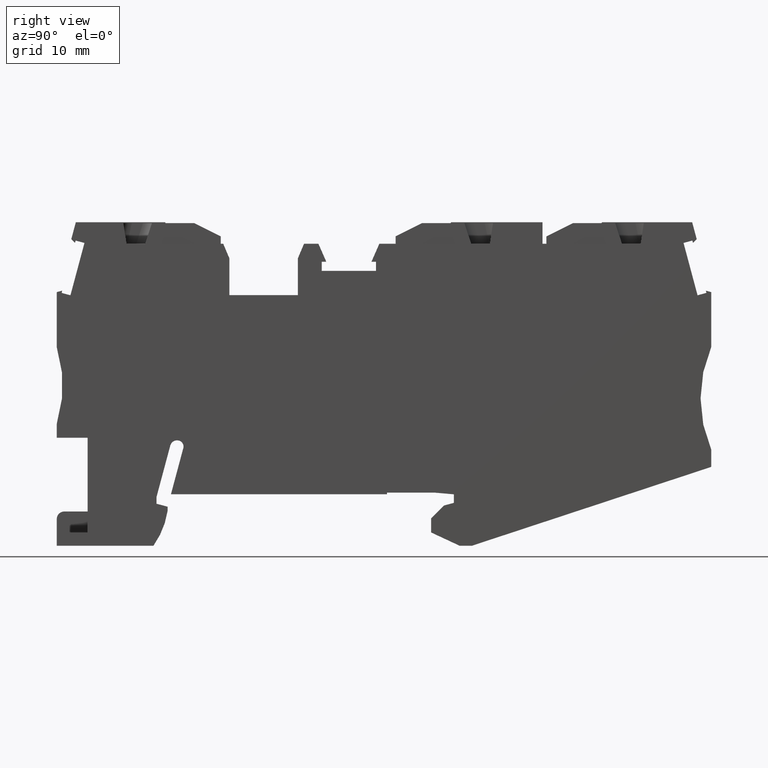
[diagram: clean part render]
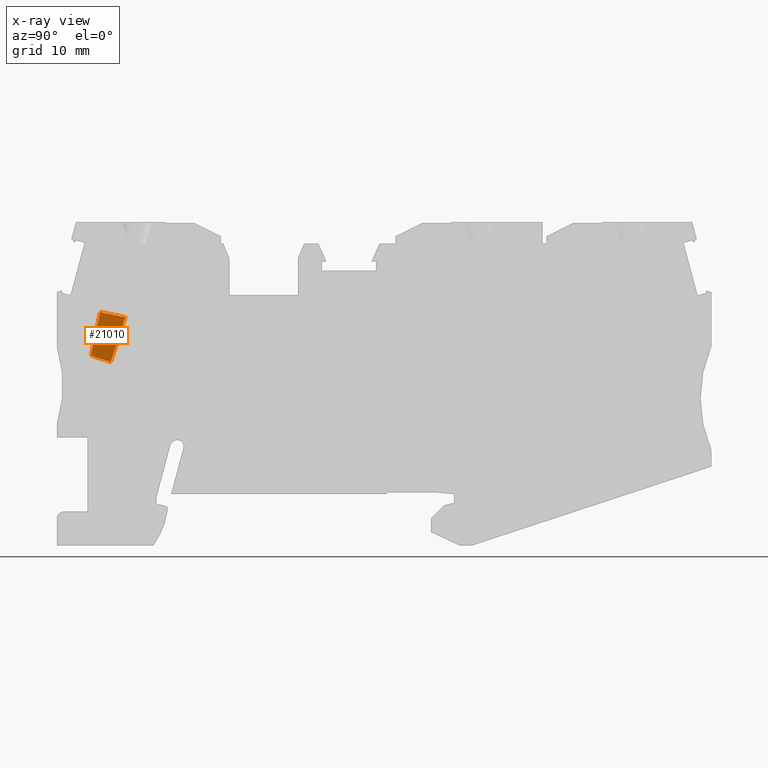
[diagram: x-ray — body ghosted, one internal face saturated and labeled with its STEP entity id]
A machine part, right view, then the same camera in x-ray: the body is ghosted and one INTERNAL B-rep face — a face not visible from any outside direction — is saturated and labeled: STEP entity #21010.
In plain terms, the highlighted planar face has unit normal (-1, -0, 0).
Its self-contained STEP definition (entity closure, byte-faithful):
#20420=CARTESIAN_POINT('',(12.4466244064516,22.1602996600401,
-2.88954846856857));
#20430=VERTEX_POINT('',#20420);
#20460=CARTESIAN_POINT('',(18.1093069076334,21.6648791360398,
-2.88954846857373));
#20470=DIRECTION('',(-0.996194698091742,0.0871557427477024,
8.86685388657767E-13));
#20480=VECTOR('',#20470,1.);
#20490=LINE('',#20460,#20480);
#20500=CARTESIAN_POINT('',(9.44602016384446,22.4228185149961,
-2.8895484685659));
#20510=VERTEX_POINT('',#20500);
#20520=EDGE_CURVE('',#20430,#20510,#20490,.T.);
#20710=CARTESIAN_POINT('',(15.2801824592157,13.787867007441,
-2.88954846857184));
#20720=DIRECTION('',(-8.83316960602998E-13,7.72148289760988E-14,-1.));
#20730=DIRECTION('',(0.996194698092603,-0.0871557427378616,
-8.86685388657768E-13));
#20740=AXIS2_PLACEMENT_3D('',#20710,#20720,#20730);
#20750=PLANE('',#20740);
#20760=ORIENTED_EDGE('',*,*,#20520,.T.);
#20770=CARTESIAN_POINT('',(3.61378549135836,-23.2807172530324,
-2.88954846857948));
#20780=DIRECTION('',(0.190808995376498,0.981627183447674,
2.20412491898331E-13));
#20790=VECTOR('',#20780,1.);
#20800=LINE('',#20770,#20790);
#20810=CARTESIAN_POINT('',(11.3973718167007,16.7623630356692,
-2.88954846857049));
#20820=VERTEX_POINT('',#20810);
#20830=EDGE_CURVE('',#20820,#20430,#20800,.T.);
#20840=ORIENTED_EDGE('',*,*,#20830,.T.);
#20850=CARTESIAN_POINT('',(17.5753295234903,15.5614897067892,
-2.88954846857373));
#20860=DIRECTION('',(0.981627183447828,-0.190808995375701,
-8.81827377841724E-13));
#20870=VECTOR('',#20860,1.);
#20880=LINE('',#20850,#20870);
#20890=CARTESIAN_POINT('',(8.98342531229145,17.2315867034361,
-2.88954846856896));
#20900=VERTEX_POINT('',#20890);
#20910=EDGE_CURVE('',#20900,#20820,#20880,.T.);
#20920=ORIENTED_EDGE('',*,*,#20910,.T.);
#20930=CARTESIAN_POINT('',(5.13571702901578,-25.9473323326846,
-2.88954846858756));
#20940=DIRECTION('',(-0.0887590966936911,-0.996053122455887,
-4.29085393513343E-13));
#20950=VECTOR('',#20940,1.);
#20960=LINE('',#20930,#20950);
#20970=EDGE_CURVE('',#20510,#20900,#20960,.T.);
#20980=ORIENTED_EDGE('',*,*,#20970,.T.);
#20990=EDGE_LOOP('',(#20980,#20920,#20840,#20760));
#21000=FACE_OUTER_BOUND('',#20990,.T.);
#21010=ADVANCED_FACE('',(#21000),#20750,.F.);